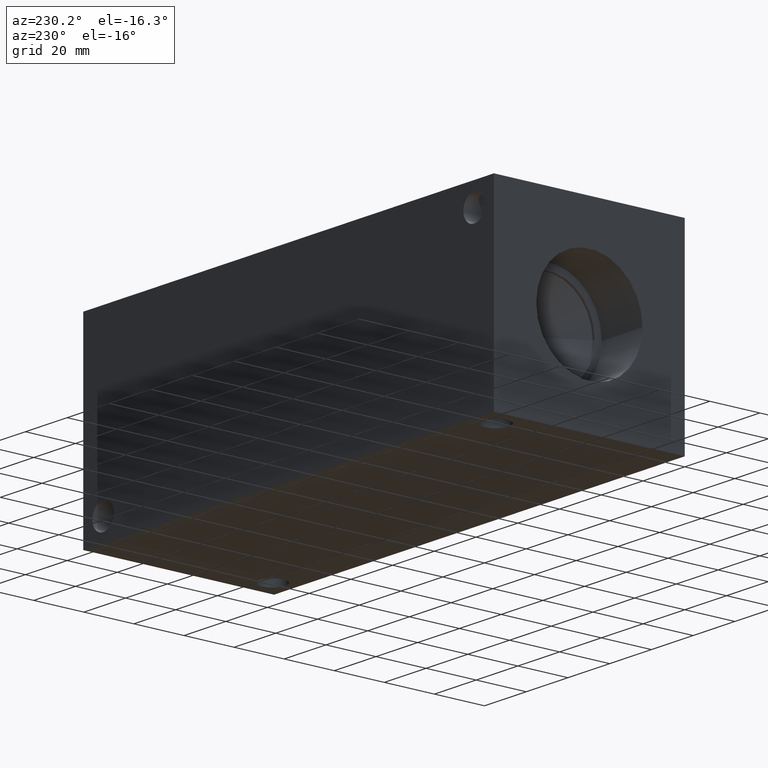
[diagram: clean part render]
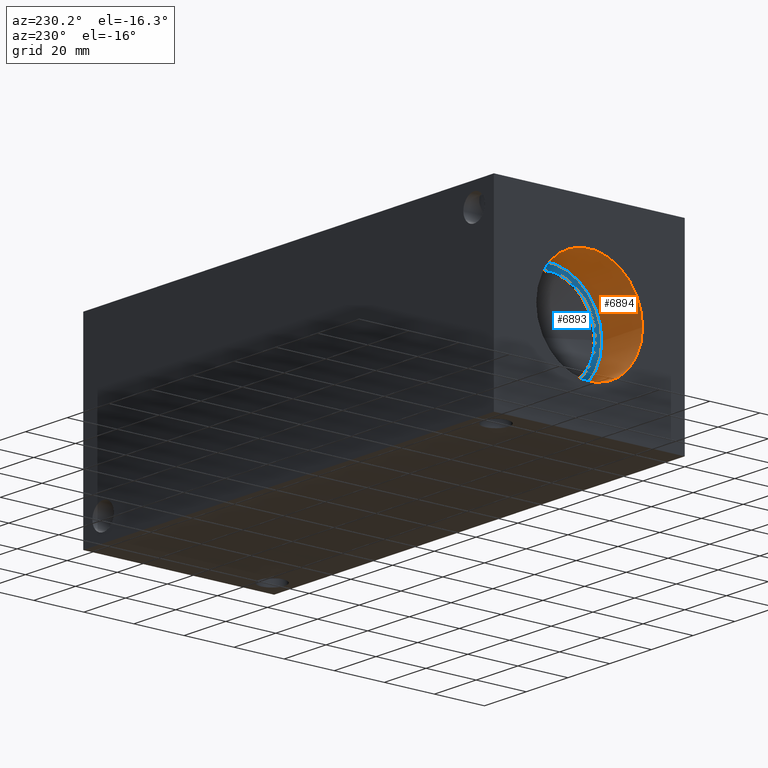
[diagram: same view with the hole feature highlighted: cylindrical wall and planar end face, labeled with their STEP entity ids]
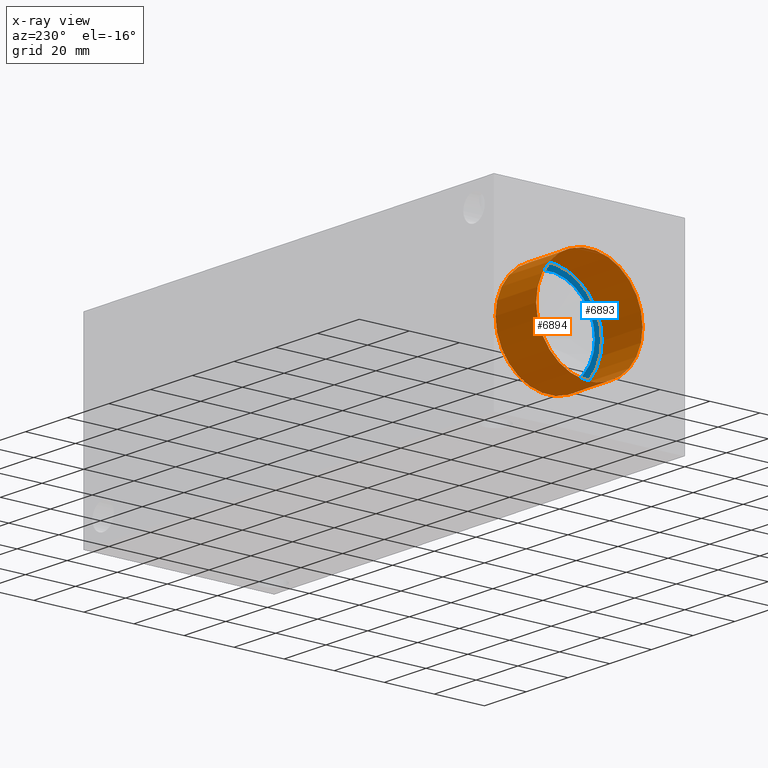
[diagram: x-ray of the same camera — body ghosted, the hole faces saturated]
A machine part, auxiliary view. The highlighted faces form one hole feature of diameter 42.4688 mm: the cylindrical wall (entity #6894, orange) and its adjacent planar end face (entity #6893, blue) — they share a circular edge in the B-rep.
The next image is the same camera in x-ray (body ghosted, the hole faces saturated) — the bore reads through the body.
Wall:
#24=CYLINDRICAL_SURFACE('',#7175,21.2344);
#65=CIRCLE('',#7172,21.2344);
#66=CIRCLE('',#7173,21.2344);
#68=CIRCLE('',#7176,21.2344);
#69=CIRCLE('',#7177,21.2344);
#773=FACE_OUTER_BOUND('',#1156,.T.);
#1156=EDGE_LOOP('',(#5883,#5884,#5885,#5886,#5887,#5888));
#1855=LINE('',#11670,#2538);
#2538=VECTOR('',#8380,21.2344);
#3157=VERTEX_POINT('',#11659);
#3158=VERTEX_POINT('',#11660);
#3160=VERTEX_POINT('',#11666);
#3161=VERTEX_POINT('',#11667);
#4080=EDGE_CURVE('',#3157,#3158,#65,.T.);
#4081=EDGE_CURVE('',#3158,#3157,#66,.T.);
#4083=EDGE_CURVE('',#3160,#3161,#68,.T.);
#4084=EDGE_CURVE('',#3161,#3160,#69,.T.);
#4085=EDGE_CURVE('',#3161,#3158,#1855,.T.);
#5883=ORIENTED_EDGE('',*,*,#4083,.F.);
#5884=ORIENTED_EDGE('',*,*,#4084,.F.);
#5885=ORIENTED_EDGE('',*,*,#4085,.T.);
#5886=ORIENTED_EDGE('',*,*,#4080,.F.);
#5887=ORIENTED_EDGE('',*,*,#4081,.F.);
#5888=ORIENTED_EDGE('',*,*,#4085,.F.);
#6894=ADVANCED_FACE('',(#773),#24,.F.);
#7172=AXIS2_PLACEMENT_3D('',#11661,#8368,#8369);
#7173=AXIS2_PLACEMENT_3D('',#11662,#8370,#8371);
#7175=AXIS2_PLACEMENT_3D('',#11665,#8374,#8375);
#7176=AXIS2_PLACEMENT_3D('',#11668,#8376,#8377);
#7177=AXIS2_PLACEMENT_3D('',#11669,#8378,#8379);
#8368=DIRECTION('center_axis',(-1.,0.,0.));
#8369=DIRECTION('ref_axis',(0.,1.,0.));
#8370=DIRECTION('center_axis',(-1.,0.,0.));
#8371=DIRECTION('ref_axis',(0.,1.,0.));
#8374=DIRECTION('center_axis',(-1.,0.,0.));
#8375=DIRECTION('ref_axis',(0.,1.,0.));
#8376=DIRECTION('center_axis',(1.,0.,0.));
#8377=DIRECTION('ref_axis',(0.,1.,0.));
#8378=DIRECTION('center_axis',(1.,0.,0.));
#8379=DIRECTION('ref_axis',(0.,1.,0.));
#8380=DIRECTION('',(1.,0.,0.));
#11659=CARTESIAN_POINT('',(19.5072,59.3344,38.1));
#11660=CARTESIAN_POINT('',(19.5072,16.8656,38.1));
#11661=CARTESIAN_POINT('Origin',(19.5072,38.1,38.1));
#11662=CARTESIAN_POINT('Origin',(19.5072,38.1,38.1));
#11665=CARTESIAN_POINT('Origin',(9.7536,38.1,38.1));
#11666=CARTESIAN_POINT('',(0.,59.3344,38.1));
#11667=CARTESIAN_POINT('',(0.,16.8656,38.1));
#11668=CARTESIAN_POINT('Origin',(0.,38.1,38.1));
#11669=CARTESIAN_POINT('Origin',(0.,38.1,38.1));
#11670=CARTESIAN_POINT('',(9.7536,16.8656,38.1));
End face:
#65=CIRCLE('',#7172,21.2344);
#66=CIRCLE('',#7173,21.2344);
#67=CIRCLE('',#7174,18.4531);
#441=FACE_BOUND('',#1155,.T.);
#772=FACE_OUTER_BOUND('',#1154,.T.);
#1154=EDGE_LOOP('',(#5880,#5881));
#1155=EDGE_LOOP('',(#5882));
#3157=VERTEX_POINT('',#11659);
#3158=VERTEX_POINT('',#11660);
#3159=VERTEX_POINT('',#11663);
#4080=EDGE_CURVE('',#3157,#3158,#65,.T.);
#4081=EDGE_CURVE('',#3158,#3157,#66,.T.);
#4082=EDGE_CURVE('',#3159,#3159,#67,.T.);
#5880=ORIENTED_EDGE('',*,*,#4080,.T.);
#5881=ORIENTED_EDGE('',*,*,#4081,.T.);
#5882=ORIENTED_EDGE('',*,*,#4082,.F.);
#6263=PLANE('',#7171);
#6893=ADVANCED_FACE('',(#772,#441),#6263,.T.);
#7171=AXIS2_PLACEMENT_3D('',#11658,#8366,#8367);
#7172=AXIS2_PLACEMENT_3D('',#11661,#8368,#8369);
#7173=AXIS2_PLACEMENT_3D('',#11662,#8370,#8371);
#7174=AXIS2_PLACEMENT_3D('',#11664,#8372,#8373);
#8366=DIRECTION('center_axis',(-1.,0.,0.));
#8367=DIRECTION('ref_axis',(0.,1.,0.));
#8368=DIRECTION('center_axis',(-1.,0.,0.));
#8369=DIRECTION('ref_axis',(0.,1.,0.));
#8370=DIRECTION('center_axis',(-1.,0.,0.));
#8371=DIRECTION('ref_axis',(0.,1.,0.));
#8372=DIRECTION('center_axis',(-1.,0.,0.));
#8373=DIRECTION('ref_axis',(0.,1.,0.));
#11658=CARTESIAN_POINT('Origin',(19.5072,38.1,38.1));
#11659=CARTESIAN_POINT('',(19.5072,59.3344,38.1));
#11660=CARTESIAN_POINT('',(19.5072,16.8656,38.1));
#11661=CARTESIAN_POINT('Origin',(19.5072,38.1,38.1));
#11662=CARTESIAN_POINT('Origin',(19.5072,38.1,38.1));
#11663=CARTESIAN_POINT('',(19.5072,19.6469,38.1));
#11664=CARTESIAN_POINT('Origin',(19.5072,38.1,38.1));